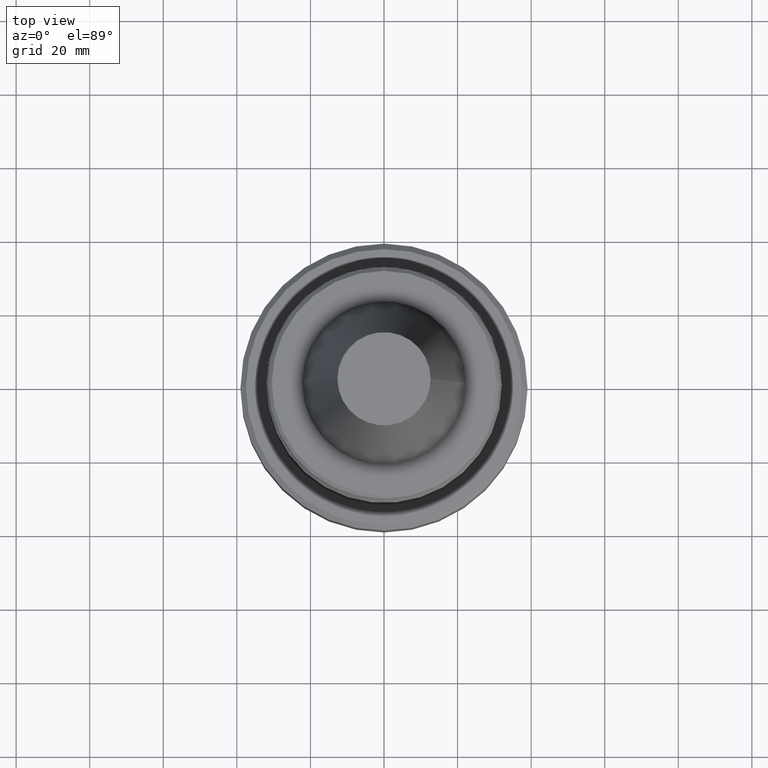
[diagram: clean part render]
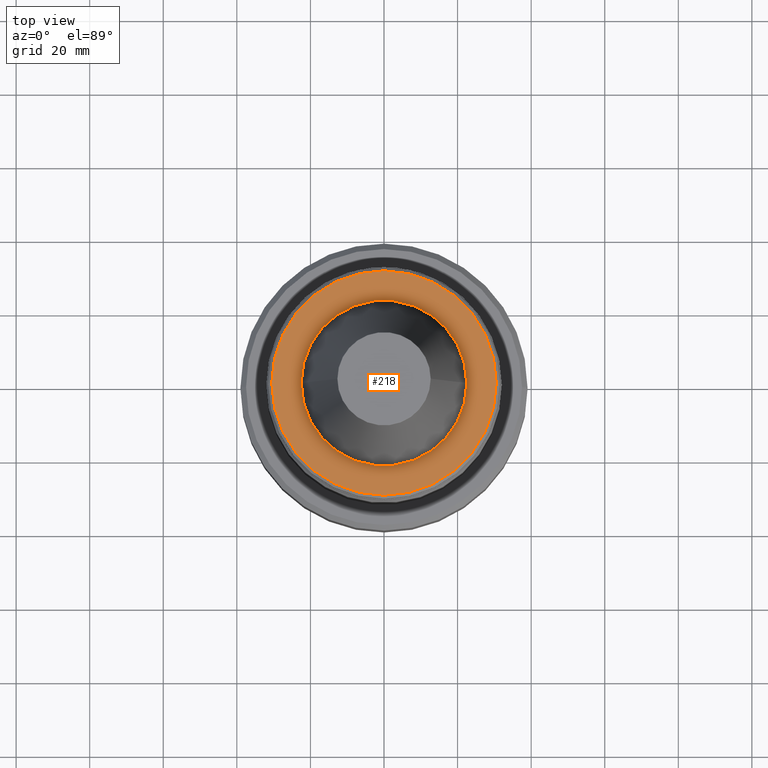
[diagram: same view with one face highlighted and labeled with its STEP entity id]
A machine part, top view. The second image highlights one B-rep face of the part: STEP entity #218.
In plain terms, the highlighted planar face has unit normal (0, 0, -1).
Its self-contained STEP definition (entity closure, byte-faithful):
#72 = CARTESIAN_POINT ( 'NONE',  ( 22.49999999999996400, 0.0000000000000000000, -2.001848841697545300 ) ) ;
#85 = VERTEX_POINT ( 'NONE', #1201 ) ;
#102 = AXIS2_PLACEMENT_3D ( 'NONE', #431, #281, #105 ) ;
#105 = DIRECTION ( 'NONE',  ( 1.000000000000000000, 0.0000000000000000000, 0.0000000000000000000 ) ) ;
#129 = CARTESIAN_POINT ( 'NONE',  ( 0.0000000000000000000, 30.49999999999997200, -2.001848841697517800 ) ) ;
#194 = ORIENTED_EDGE ( 'NONE', *, *, #1129, .F. ) ;
#218 = ADVANCED_FACE ( 'NONE', ( #440, #875 ), #353, .F. ) ;
#278 = AXIS2_PLACEMENT_3D ( 'NONE', #129, #1106, #1110 ) ;
#281 = DIRECTION ( 'NONE',  ( -0.0000000000000000000, -0.0000000000000000000, 1.000000000000000000 ) ) ;
#284 = DIRECTION ( 'NONE',  ( 1.000000000000000000, 0.0000000000000000000, 0.0000000000000000000 ) ) ;
#285 = AXIS2_PLACEMENT_3D ( 'NONE', #926, #615, #1034 ) ;
#344 = VERTEX_POINT ( 'NONE', #72 ) ;
#353 = PLANE ( 'NONE',  #278 ) ;
#431 = CARTESIAN_POINT ( 'NONE',  ( 0.0000000000000000000, 0.0000000000000000000, -2.001848841697517800 ) ) ;
#440 = FACE_BOUND ( 'NONE', #627, .T. ) ;
#444 = AXIS2_PLACEMENT_3D ( 'NONE', #685, #778, #1225 ) ;
#448 = DIRECTION ( 'NONE',  ( -0.0000000000000000000, -0.0000000000000000000, 1.000000000000000000 ) ) ;
#505 = EDGE_CURVE ( 'NONE', #85, #1256, #1288, .T. ) ;
#537 = CARTESIAN_POINT ( 'NONE',  ( -22.49999999999996400, 2.755455298081540400E-015, -2.001848841697545300 ) ) ;
#615 = DIRECTION ( 'NONE',  ( -0.0000000000000000000, -0.0000000000000000000, 1.000000000000000000 ) ) ;
#627 = EDGE_LOOP ( 'NONE', ( #1103, #194 ) ) ;
#666 = VERTEX_POINT ( 'NONE', #537 ) ;
#685 = CARTESIAN_POINT ( 'NONE',  ( 0.0000000000000000000, 0.0000000000000000000, -2.001848841697517800 ) ) ;
#778 = DIRECTION ( 'NONE',  ( -0.0000000000000000000, -0.0000000000000000000, 1.000000000000000000 ) ) ;
#809 = CIRCLE ( 'NONE', #285, 22.49999999999996400 ) ;
#875 = FACE_OUTER_BOUND ( 'NONE', #1193, .T. ) ;
#886 = ORIENTED_EDGE ( 'NONE', *, *, #505, .T. ) ;
#926 = CARTESIAN_POINT ( 'NONE',  ( 0.0000000000000000000, 0.0000000000000000000, -2.001848841697517800 ) ) ;
#940 = CARTESIAN_POINT ( 'NONE',  ( 0.0000000000000000000, 0.0000000000000000000, -2.001848841697517800 ) ) ;
#971 = ORIENTED_EDGE ( 'NONE', *, *, #1366, .T. ) ;
#995 = CIRCLE ( 'NONE', #1045, 30.49999999999997200 ) ;
#1034 = DIRECTION ( 'NONE',  ( 1.000000000000000000, 0.0000000000000000000, 0.0000000000000000000 ) ) ;
#1044 = CARTESIAN_POINT ( 'NONE',  ( 30.49999999999997200, 3.796405077356791200E-015, -2.001848841697517800 ) ) ;
#1045 = AXIS2_PLACEMENT_3D ( 'NONE', #940, #448, #284 ) ;
#1092 = CIRCLE ( 'NONE', #102, 22.49999999999996400 ) ;
#1103 = ORIENTED_EDGE ( 'NONE', *, *, #1211, .F. ) ;
#1106 = DIRECTION ( 'NONE',  ( 0.0000000000000000000, 0.0000000000000000000, -1.000000000000000000 ) ) ;
#1110 = DIRECTION ( 'NONE',  ( -1.000000000000000000, 0.0000000000000000000, -0.0000000000000000000 ) ) ;
#1129 = EDGE_CURVE ( 'NONE', #666, #344, #1092, .T. ) ;
#1193 = EDGE_LOOP ( 'NONE', ( #886, #971 ) ) ;
#1201 = CARTESIAN_POINT ( 'NONE',  ( -30.49999999999997200, 0.0000000000000000000, -2.001848841697517800 ) ) ;
#1211 = EDGE_CURVE ( 'NONE', #344, #666, #809, .T. ) ;
#1225 = DIRECTION ( 'NONE',  ( 1.000000000000000000, 0.0000000000000000000, 0.0000000000000000000 ) ) ;
#1256 = VERTEX_POINT ( 'NONE', #1044 ) ;
#1288 = CIRCLE ( 'NONE', #444, 30.49999999999997200 ) ;
#1366 = EDGE_CURVE ( 'NONE', #1256, #85, #995, .T. ) ;